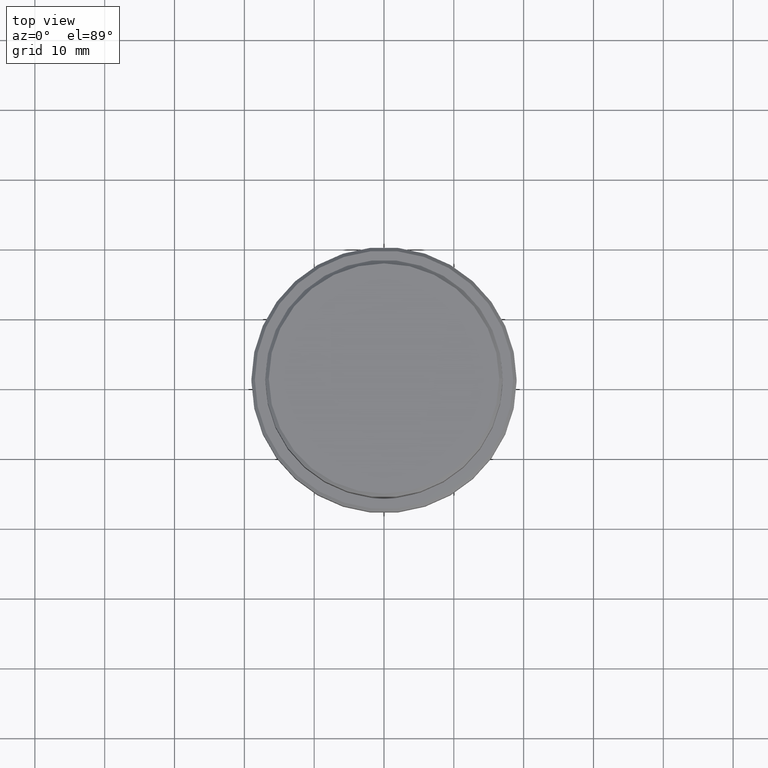
[diagram: clean part render]
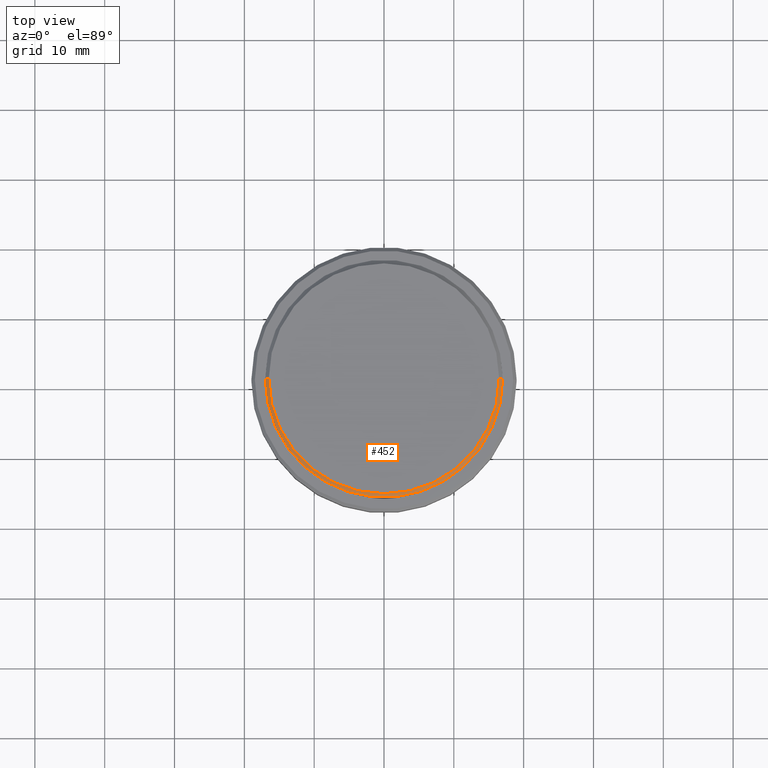
[diagram: same view with one face highlighted and labeled with its STEP entity id]
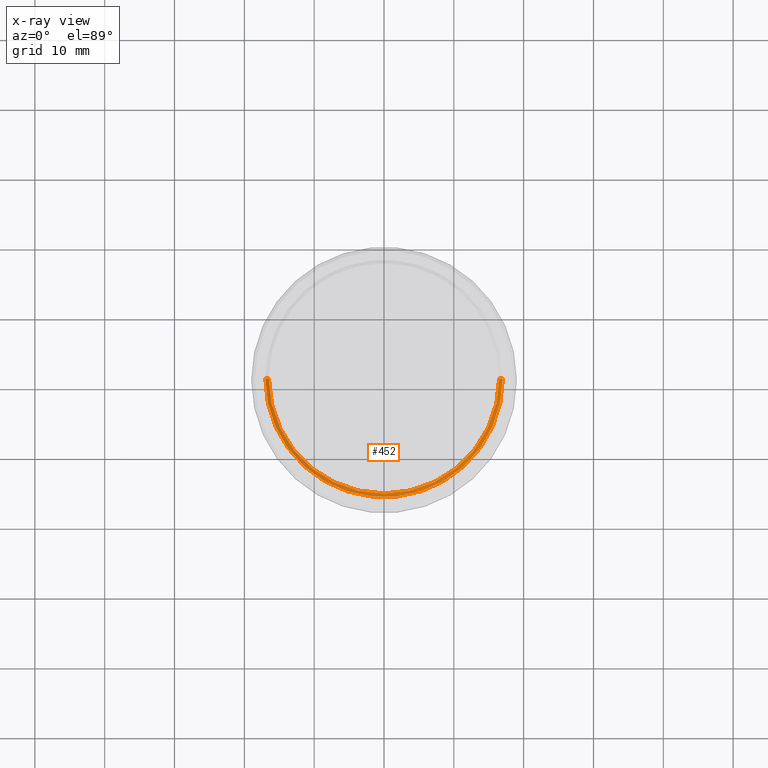
[diagram: x-ray of the same camera — body ghosted, the highlighted face saturated]
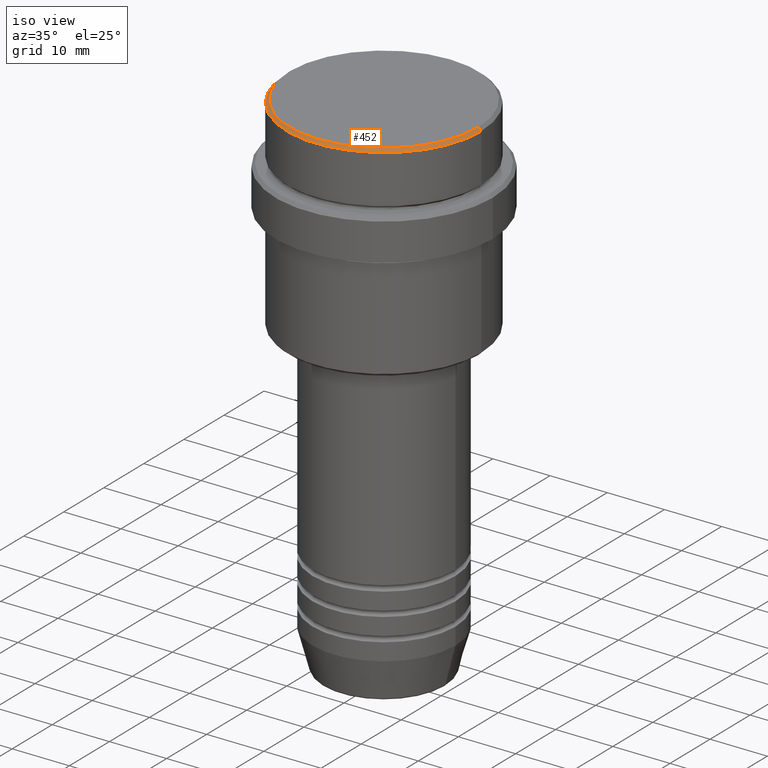
[diagram: same view with one face highlighted and labeled with its STEP entity id]
A machine part, top view. The second image highlights one B-rep face of the part: STEP entity #452.
The next image is the same camera in x-ray: the body ghosted, the highlighted face saturated — about 0% of this face is hidden behind the body in this view.
A second angle (iso view) of the same face is appended — the face is thin or edge-on in the first view.
In plain terms, the highlighted conical surface has half-angle 45 deg.
Its self-contained STEP definition (entity closure, byte-faithful):
#63 = FACE_OUTER_BOUND ( 'NONE', #565, .T. ) ;
#117 = CARTESIAN_POINT ( 'NONE',  ( 17.00000000000000000, 0.000000000000000000, -0.5000000000000073275 ) ) ;
#139 = CARTESIAN_POINT ( 'NONE',  ( 16.49999999999998579, 2.020667218593131128E-15, 0.000000000000000000 ) ) ;
#147 = CARTESIAN_POINT ( 'NONE',  ( -17.00000000000000000, 2.081899558550500280E-15, -0.5000000000000073275 ) ) ;
#171 = DIRECTION ( 'NONE',  ( 0.000000000000000000, 0.000000000000000000, -1.000000000000000000 ) ) ;
#219 = CARTESIAN_POINT ( 'NONE',  ( -16.49999999999998579, 0.000000000000000000, 0.000000000000000000 ) ) ;
#222 = DIRECTION ( 'NONE',  ( -0.000000000000000000, -0.000000000000000000, 1.000000000000000000 ) ) ;
#325 = VERTEX_POINT ( 'NONE', #815 ) ;
#377 = DIRECTION ( 'NONE',  ( 0.000000000000000000, 0.000000000000000000, -1.000000000000000000 ) ) ;
#383 = AXIS2_PLACEMENT_3D ( 'NONE', #866, #222, #448 ) ;
#448 = DIRECTION ( 'NONE',  ( 1.000000000000000000, 0.000000000000000000, 0.000000000000000000 ) ) ;
#452 = ADVANCED_FACE ( 'NONE', ( #63 ), #927, .T. ) ;
#522 = CIRCLE ( 'NONE', #553, 17.00000000000000000 ) ;
#553 = AXIS2_PLACEMENT_3D ( 'NONE', #701, #171, #1019 ) ;
#565 = EDGE_LOOP ( 'NONE', ( #1255, #572, #831, #1236 ) ) ;
#572 = ORIENTED_EDGE ( 'NONE', *, *, #820, .F. ) ;
#604 = VECTOR ( 'NONE', #1111, 1000.000000000000000 ) ;
#625 = VERTEX_POINT ( 'NONE', #117 ) ;
#664 = CIRCLE ( 'NONE', #383, 16.49999999999998579 ) ;
#701 = CARTESIAN_POINT ( 'NONE',  ( 0.000000000000000000, 0.000000000000000000, -0.5000000000000073275 ) ) ;
#712 = DIRECTION ( 'NONE',  ( -1.000000000000000000, 0.000000000000000000, 0.000000000000000000 ) ) ;
#815 = CARTESIAN_POINT ( 'NONE',  ( 16.49999999999998579, 2.051283388571816098E-15, 0.000000000000000000 ) ) ;
#820 = EDGE_CURVE ( 'NONE', #1161, #325, #664, .T. ) ;
#831 = ORIENTED_EDGE ( 'NONE', *, *, #1049, .T. ) ;
#832 = CARTESIAN_POINT ( 'NONE',  ( -16.49999999999998579, 0.000000000000000000, 0.000000000000000000 ) ) ;
#841 = AXIS2_PLACEMENT_3D ( 'NONE', #1173, #377, #712 ) ;
#866 = CARTESIAN_POINT ( 'NONE',  ( 0.000000000000000000, 0.000000000000000000, 0.000000000000000000 ) ) ;
#914 = DIRECTION ( 'NONE',  ( 0.7071067811865524577, 8.659560562354994488E-17, -0.7071067811865426878 ) ) ;
#927 = CONICAL_SURFACE ( 'NONE', #841, 16.49999999999998579, 0.7853981633974552734 ) ;
#961 = EDGE_CURVE ( 'NONE', #325, #625, #1365, .T. ) ;
#1019 = DIRECTION ( 'NONE',  ( 1.000000000000000000, 0.000000000000000000, 0.000000000000000000 ) ) ;
#1032 = EDGE_CURVE ( 'NONE', #625, #1069, #522, .T. ) ;
#1049 = EDGE_CURVE ( 'NONE', #1161, #1069, #1197, .T. ) ;
#1069 = VERTEX_POINT ( 'NONE', #147 ) ;
#1111 = DIRECTION ( 'NONE',  ( -0.7071067811865524577, 0.000000000000000000, -0.7071067811865426878 ) ) ;
#1161 = VERTEX_POINT ( 'NONE', #832 ) ;
#1173 = CARTESIAN_POINT ( 'NONE',  ( 0.000000000000000000, 0.000000000000000000, 0.000000000000000000 ) ) ;
#1197 = LINE ( 'NONE', #219, #604 ) ;
#1236 = ORIENTED_EDGE ( 'NONE', *, *, #1032, .F. ) ;
#1255 = ORIENTED_EDGE ( 'NONE', *, *, #961, .F. ) ;
#1335 = VECTOR ( 'NONE', #914, 1000.000000000000000 ) ;
#1365 = LINE ( 'NONE', #139, #1335 ) ;